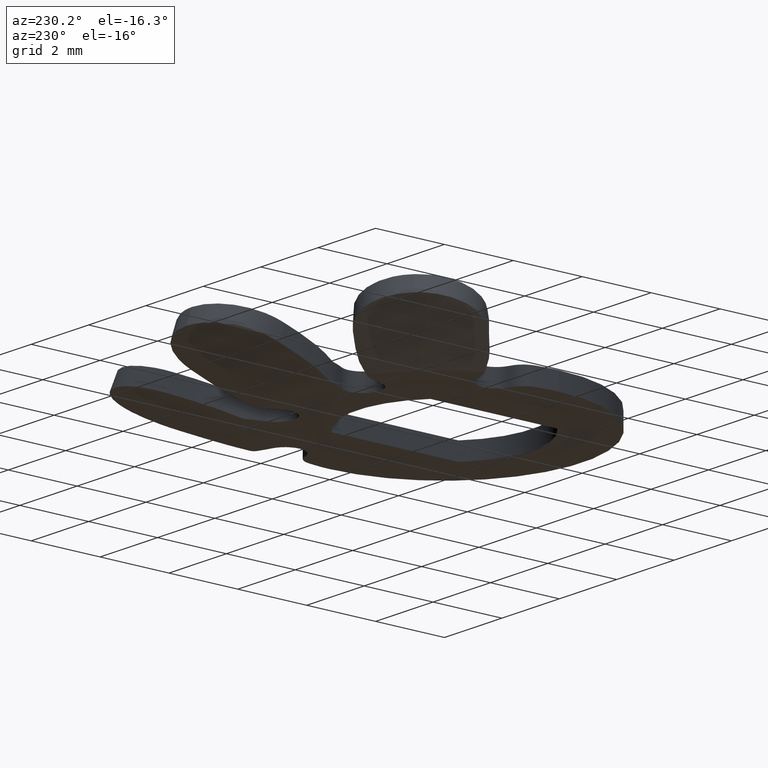
[diagram: clean part render]
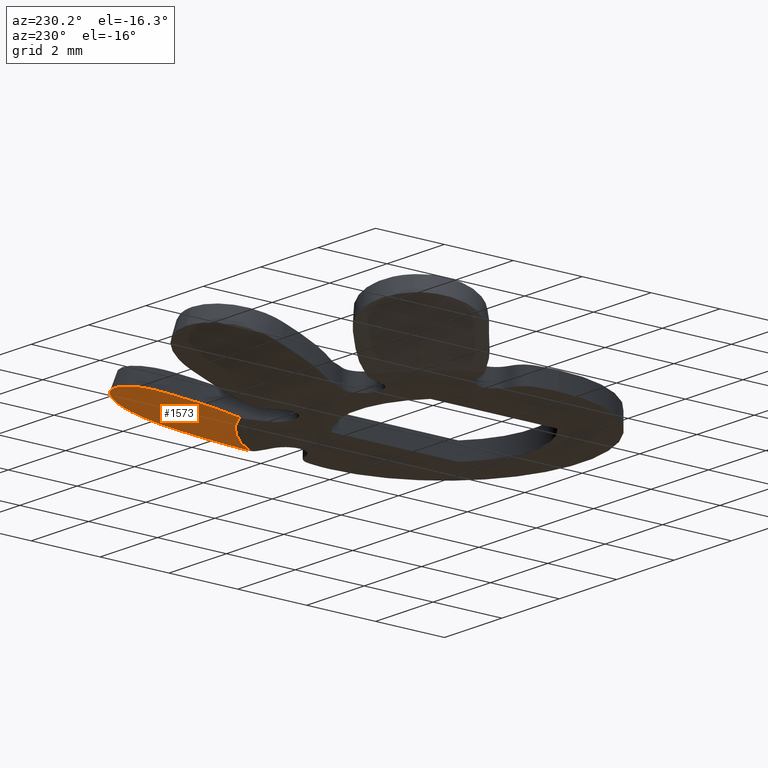
[diagram: same view with one face highlighted and labeled with its STEP entity id]
A machine part, auxiliary view. The second image highlights one B-rep face of the part: STEP entity #1573.
In plain terms, the highlighted conical surface has half-angle 70.529 deg.
Its self-contained STEP definition (entity closure, byte-faithful):
#14 = CARTESIAN_POINT ( 'NONE',  ( 2.209763858464371300, 4.110318900961634500, 0.02859547920896821400 ) ) ;
#40 = B_SPLINE_CURVE_WITH_KNOTS ( 'NONE', 3,
 ( #75, #1684, #886, #87, #1027, #221, #1161, #358, #1294, #503, #1433, #627, #1561, #768 ),
 .UNSPECIFIED., .F., .F.,
 ( 4, 2, 2, 2, 2, 2, 4 ),
 ( 3.276013342922688000E-018, 0.0002930181684667304000, 0.0005860363369334575500, 0.0008790545054001846900, 0.001172072673866911800, 0.001758109010800363500, 0.002344145347733815400 ),
 .UNSPECIFIED. ) ;
#42 = CARTESIAN_POINT ( 'NONE',  ( 5.087042151829812100, 2.965721808270128400, 0.4604813531463350900 ) ) ;
#43 = CARTESIAN_POINT ( 'NONE',  ( 5.483590628253358200, 3.362270284693671400, 0.6527851435058935600 ) ) ;
#53 = VERTEX_POINT ( 'NONE', #1298 ) ;
#64 = CARTESIAN_POINT ( 'NONE',  ( 2.354684970506663700, 4.401808656235288300, 0.1436284149278990500 ) ) ;
#75 = CARTESIAN_POINT ( 'NONE',  ( 3.224804046219885000, 5.346124389779510500, 0.5860651893590938000 ) ) ;
#86 = ORIENTED_EDGE ( 'NONE', *, *, #582, .T. ) ;
#87 = CARTESIAN_POINT ( 'NONE',  ( 3.518988865285007900, 5.572722727989510200, 0.7088349508185252100 ) ) ;
#101 = CARTESIAN_POINT ( 'NONE',  ( 4.096602486773163000, 2.235089672282020200, 0.02859547920896833900 ) ) ;
#112 = B_SPLINE_CURVE_WITH_KNOTS ( 'NONE', 3,
 ( #510, #754, #1039, #1687 ),
 .UNSPECIFIED., .F., .F.,
 ( 4, 4 ),
 ( 0.0000000000000000000, 0.001112876334968356900 ),
 .UNSPECIFIED. ) ;
#118 = EDGE_CURVE ( 'NONE', #707, #1206, #112, .T. ) ;
#133 = ORIENTED_EDGE ( 'NONE', *, *, #1454, .T. ) ;
#156 = VERTEX_POINT ( 'NONE', #14 ) ;
#176 = CARTESIAN_POINT ( 'NONE',  ( 5.299831645537248700, 5.299831645537193700, 1.028595479208968200 ) ) ;
#185 = CARTESIAN_POINT ( 'NONE',  ( 5.542300119665361200, 5.008211239144573700, 1.018911940050751100 ) ) ;
#192 = CARTESIAN_POINT ( 'NONE',  ( 2.209763858464371300, 4.110318900961634500, 0.02859547920896821400 ) ) ;
#221 = CARTESIAN_POINT ( 'NONE',  ( 3.779209902345433700, 5.685839208781780000, 0.7923960592299111900 ) ) ;
#274 = VERTEX_POINT ( 'NONE', #375 ) ;
#286 = CARTESIAN_POINT ( 'NONE',  ( 5.749218782144581900, 4.294005031925978600, 0.9157053712087435100 ) ) ;
#358 = CARTESIAN_POINT ( 'NONE',  ( 4.057212625737581600, 5.745025131315235200, 0.8651866891094650600 ) ) ;
#359 = ORIENTED_EDGE ( 'NONE', *, *, #784, .F. ) ;
#375 = CARTESIAN_POINT ( 'NONE',  ( 3.224804046219885000, 5.346124389779510500, 0.5860651893590938000 ) ) ;
#473 = CARTESIAN_POINT ( 'NONE',  ( 2.774754878398197500, 4.896075221957824300, 0.3683661020349869900 ) ) ;
#503 = CARTESIAN_POINT ( 'NONE',  ( 4.441788087080361400, 5.746949477500196600, 0.9460823278403189800 ) ) ;
#505 = CARTESIAN_POINT ( 'NONE',  ( 2.774754878398197500, 4.896075221957824300, 0.3683661020349869900 ) ) ;
#510 = CARTESIAN_POINT ( 'NONE',  ( 4.957437170603411900, 2.836116827043729600, 0.3979537202167722800 ) ) ;
#559 = EDGE_LOOP ( 'NONE', ( #1386, #994, #133, #826, #1020, #86, #585, #359 ) ) ;
#582 = EDGE_CURVE ( 'NONE', #1176, #1142, #1301, .T. ) ;
#585 = ORIENTED_EDGE ( 'NONE', *, *, #1438, .T. ) ;
#593 = CARTESIAN_POINT ( 'NONE',  ( 5.346124389779530100, 3.224804046219843300, 0.5860651893590921300 ) ) ;
#609 = CARTESIAN_POINT ( 'NONE',  ( 4.957437170603411900, 2.836116827043729600, 0.3979537202167722800 ) ) ;
#627 = CARTESIAN_POINT ( 'NONE',  ( 4.993277046720876900, 5.551981150584143900, 1.017877804390303400 ) ) ;
#635 = CARTESIAN_POINT ( 'NONE',  ( 0.0000000000000000000, 0.0000000000000000000, 0.0000000000000000000 ) ) ;
#707 = VERTEX_POINT ( 'NONE', #1396 ) ;
#713 = CARTESIAN_POINT ( 'NONE',  ( 5.718825601358008500, 3.899683925508650200, 0.8258045417529468200 ) ) ;
#730 = CARTESIAN_POINT ( 'NONE',  ( 5.744650251115463600, 4.386496974478228900, 0.9339794953225709600 ) ) ;
#737 = AXIS2_PLACEMENT_3D ( 'NONE', #635, #1034, #1695 ) ;
#739 = EDGE_CURVE ( 'NONE', #1206, #156, #972, .T. ) ;
#754 = CARTESIAN_POINT ( 'NONE',  ( 4.705137689000914700, 2.583817345441234100, 0.2762324003671721700 ) ) ;
#764 = CARTESIAN_POINT ( 'NONE',  ( 5.299831645537248700, 5.299831645537193700, 1.028595479208968200 ) ) ;
#768 = CARTESIAN_POINT ( 'NONE',  ( 5.299831645537248700, 5.299831645537193700, 1.028595479208968200 ) ) ;
#771 = CARTESIAN_POINT ( 'NONE',  ( 3.224804046219885000, 5.346124389779510500, 0.5860651893590938000 ) ) ;
#772 = CARTESIAN_POINT ( 'NONE',  ( 5.657591876576516300, 4.749793910699205300, 0.9902099417992299400 ) ) ;
#784 = EDGE_CURVE ( 'NONE', #707, #53, #1431, .T. ) ;
#826 = ORIENTED_EDGE ( 'NONE', *, *, #1570, .T. ) ;
#842 = CARTESIAN_POINT ( 'NONE',  ( 5.590505700130660400, 3.529762800402348700, 0.7158734156958351800 ) ) ;
#853 = CARTESIAN_POINT ( 'NONE',  ( 5.731159314853448100, 4.480215709626681300, 0.9504350960579863700 ) ) ;
#863 = CARTESIAN_POINT ( 'NONE',  ( 0.0000000000000000000, 0.0000000000000000000, 0.02859547920896869700 ) ) ;
#886 = CARTESIAN_POINT ( 'NONE',  ( 3.363271890292586400, 5.470846310443049800, 0.6491483715633692400 ) ) ;
#940 = CONICAL_SURFACE ( 'NONE', #737, 4.585786437626908600, 1.230959417340774300 ) ;
#967 = CARTESIAN_POINT ( 'NONE',  ( 5.754140527042244100, 4.194362117486194900, 0.8960183916155182200 ) ) ;
#972 = CIRCLE ( 'NONE', #1555, 4.666666666666670500 ) ;
#979 = CARTESIAN_POINT ( 'NONE',  ( 5.346124389779530100, 3.224804046219843300, 0.5860651893590921300 ) ) ;
#994 = ORIENTED_EDGE ( 'NONE', *, *, #739, .T. ) ;
#998 = FACE_OUTER_BOUND ( 'NONE', #559, .T. ) ;
#1020 = ORIENTED_EDGE ( 'NONE', *, *, #1690, .T. ) ;
#1027 = CARTESIAN_POINT ( 'NONE',  ( 3.603502838827150200, 5.616488650787186300, 0.7378955607323255400 ) ) ;
#1034 = DIRECTION ( 'NONE',  ( -0.0000000000000000000, -0.0000000000000000000, 1.000000000000000000 ) ) ;
#1036 = CARTESIAN_POINT ( 'NONE',  ( 5.434738637390914600, 5.164924653683527800, 1.028595479208968200 ) ) ;
#1039 = CARTESIAN_POINT ( 'NONE',  ( 4.417810667451584900, 2.383813634150433000, 0.1534710637832019900 ) ) ;
#1047 = CARTESIAN_POINT ( 'NONE',  ( 5.687603497560740400, 4.661397274913726500, 0.9784475915800509000 ) ) ;
#1110 = B_SPLINE_CURVE_WITH_KNOTS ( 'NONE', 3,
 ( #192, #64, #1267, #473 ),
 .UNSPECIFIED., .F., .F.,
 ( 4, 4 ),
 ( 8.486621797141177700E-005, 0.001110488541138487700 ),
 .UNSPECIFIED. ) ;
#1115 = CARTESIAN_POINT ( 'NONE',  ( 5.749218782144581900, 4.294005031925978600, 0.9157053712087435100 ) ) ;
#1142 = VERTEX_POINT ( 'NONE', #286 ) ;
#1161 = CARTESIAN_POINT ( 'NONE',  ( 3.869976761627057300, 5.711528862868592100, 0.8177812283600720500 ) ) ;
#1167 = CARTESIAN_POINT ( 'NONE',  ( 2.774754878398197500, 4.896075221957824300, 0.3683661020349869900 ) ) ;
#1176 = VERTEX_POINT ( 'NONE', #764 ) ;
#1206 = VERTEX_POINT ( 'NONE', #101 ) ;
#1245 = CARTESIAN_POINT ( 'NONE',  ( 5.749218782144581900, 4.294005031925978600, 0.9157053712087435100 ) ) ;
#1267 = CARTESIAN_POINT ( 'NONE',  ( 2.542740522608823600, 4.664060866168449900, 0.2565556011867016800 ) ) ;
#1291 = B_SPLINE_CURVE_WITH_KNOTS ( 'NONE', 3,
 ( #505, #1436, #1563, #771 ),
 .UNSPECIFIED., .F., .F.,
 ( 4, 4 ),
 ( 0.006368633945849259400, 0.007038016172639697000 ),
 .UNSPECIFIED. ) ;
#1294 = CARTESIAN_POINT ( 'NONE',  ( 4.154287336754900500, 5.752629444435069000, 0.8872832104286008100 ) ) ;
#1298 = CARTESIAN_POINT ( 'NONE',  ( 5.346124389779530100, 3.224804046219843300, 0.5860651893590921300 ) ) ;
#1301 = B_SPLINE_CURVE_WITH_KNOTS ( 'NONE', 3,
 ( #176, #1036, #185, #772, #1047, #853, #730, #1245 ),
 .UNSPECIFIED., .F., .F.,
 ( 4, 2, 2, 4 ),
 ( 0.0000000000000000000, 0.0005642273151225503900, 0.0008463409726838261700, 0.001128454630245101900 ),
 .UNSPECIFIED. ) ;
#1386 = ORIENTED_EDGE ( 'NONE', *, *, #118, .T. ) ;
#1396 = CARTESIAN_POINT ( 'NONE',  ( 4.957437170603411900, 2.836116827043729600, 0.3979537202167722800 ) ) ;
#1398 = DIRECTION ( 'NONE',  ( -1.000000000000000000, 3.552713678800500900E-015, 0.0000000000000000000 ) ) ;
#1417 = CARTESIAN_POINT ( 'NONE',  ( 5.216600905541550800, 3.095280561981865700, 0.5232002923106638900 ) ) ;
#1420 = B_SPLINE_CURVE_WITH_KNOTS ( 'NONE', 3,
 ( #1115, #967, #1511, #713, #1638, #842, #43, #979 ),
 .UNSPECIFIED., .F., .F.,
 ( 4, 2, 2, 4 ),
 ( 0.001128454630245101900, 0.001432379775149729200, 0.001736304920054356800, 0.002344155209863610500 ),
 .UNSPECIFIED. ) ;
#1431 = B_SPLINE_CURVE_WITH_KNOTS ( 'NONE', 3,
 ( #609, #42, #1417, #593 ),
 .UNSPECIFIED., .F., .F.,
 ( 4, 4 ),
 ( 0.001243411538935019900, 0.001824394645714944600 ),
 .UNSPECIFIED. ) ;
#1433 = CARTESIAN_POINT ( 'NONE',  ( 4.636118952660116800, 5.704906394625422400, 0.9768804874492060800 ) ) ;
#1436 = CARTESIAN_POINT ( 'NONE',  ( 2.924825344852648400, 5.046145688412274800, 0.4406868597731013500 ) ) ;
#1438 = EDGE_CURVE ( 'NONE', #1142, #53, #1420, .T. ) ;
#1454 = EDGE_CURVE ( 'NONE', #156, #1706, #1110, .T. ) ;
#1511 = CARTESIAN_POINT ( 'NONE',  ( 5.749065808626631300, 4.095551408067025000, 0.8741795979588515800 ) ) ;
#1555 = AXIS2_PLACEMENT_3D ( 'NONE', #863, #1655, #1398 ) ;
#1561 = CARTESIAN_POINT ( 'NONE',  ( 5.159709004061586100, 5.439954287012860800, 1.028595479208968200 ) ) ;
#1563 = CARTESIAN_POINT ( 'NONE',  ( 3.074836367484059500, 5.196156711043685500, 0.5132775961300734000 ) ) ;
#1570 = EDGE_CURVE ( 'NONE', #1706, #274, #1291, .T. ) ;
#1573 = ADVANCED_FACE ( 'NONE', ( #998 ), #940, .T. ) ;
#1638 = CARTESIAN_POINT ( 'NONE',  ( 5.693496280257723400, 3.803283105251162000, 0.7993605202684596100 ) ) ;
#1655 = DIRECTION ( 'NONE',  ( -0.0000000000000000000, -0.0000000000000000000, 1.000000000000000000 ) ) ;
#1684 = CARTESIAN_POINT ( 'NONE',  ( 3.291071900605958300, 5.412392244165584300, 0.6182286373090115600 ) ) ;
#1687 = CARTESIAN_POINT ( 'NONE',  ( 4.096602486773163000, 2.235089672282020200, 0.02859547920896833900 ) ) ;
#1690 = EDGE_CURVE ( 'NONE', #274, #1176, #40, .T. ) ;
#1695 = DIRECTION ( 'NONE',  ( 1.000000000000000000, 0.0000000000000000000, 0.0000000000000000000 ) ) ;
#1706 = VERTEX_POINT ( 'NONE', #1167 ) ;